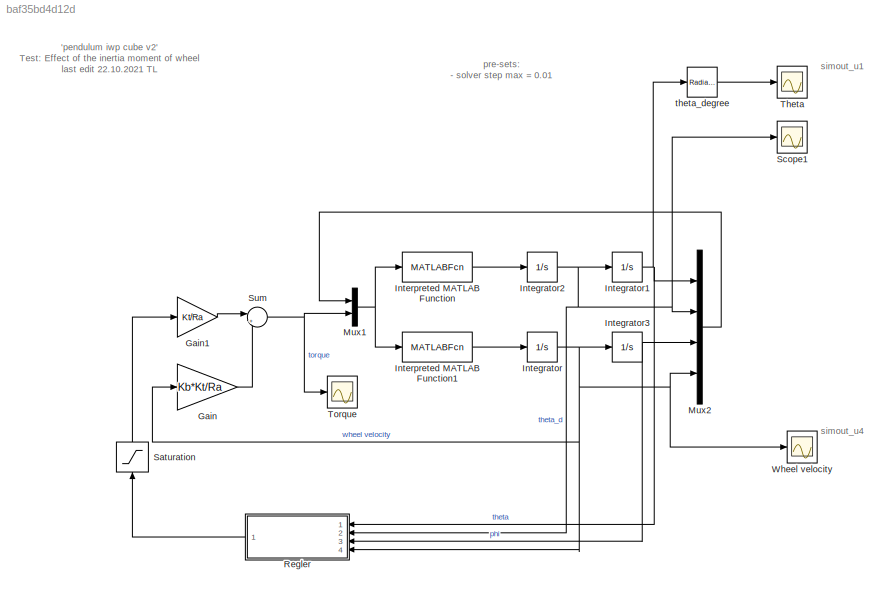
MODEL slx_baf35bd4d12d
KIND model
CONFIG AbsTol = auto
CONFIG EnableMultiTasking = on
CONFIG FixedStep = auto
CONFIG MaxStep = 0.01
CONFIG MinStep = auto
CONFIG RelTol = 1e-3
CONFIG SampleTimeConstraint = Unconstrained
CONFIG SolverName = VariableStepAuto
CONFIG StartTime = 0.0
CONFIG StopTime = 10
BLOCK [Gain] Gain
  Gain = Kb*Kt/Ra
BLOCK [Gain] Gain1
  Gain = Kt/Ra
BLOCK [Integrator] Integrator
  Ports = [1, 1]
BLOCK [Integrator] Integrator1
  InitialCondition = theta_0
  Ports = [1, 1]
BLOCK [Integrator] Integrator2
  Ports = [1, 1]
BLOCK [Integrator] Integrator3
  Ports = [1, 1]
BLOCK [MATLABFcn] Interpreted MATLAB Function
  MATLABFcn = (b*g*sin(u(1))-c1*u(2)+c2*u(4)-u(5))/(a-J2)
  NameLocation = top
  Output1D = off
  Ports = [1, 1]
BLOCK [MATLABFcn] Interpreted MATLAB Function1
  MATLABFcn = (a*u(5)/J2+c1*u(2)-b*g*sin(u(1))-a*c2*u(4)/J2)/(a-J2)
  NameLocation = top
  Output1D = off
  Ports = [1, 1]
BLOCK [Mux] Mux1
  DisplayOption = bar
  Inputs = 2
  Ports = [2, 1]
BLOCK [Mux] Mux2
  DisplayOption = bar
  Ports = [4, 1]
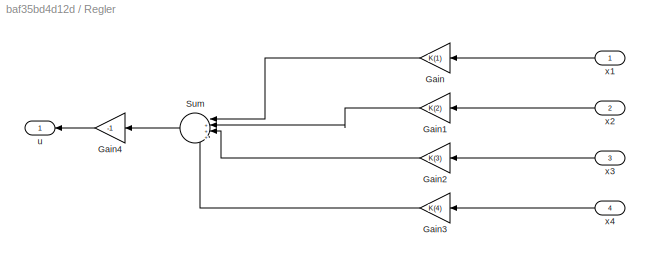
BLOCK [SubSystem] Regler
  NameLocation = top
  Ports = [4, 1]
  RequestExecContextInheritance = off
BLOCK [Gain] Regler/Gain
  Gain = K(1)
  NameLocation = top
BLOCK [Gain] Regler/Gain1
  Gain = K(2)
  NameLocation = top
BLOCK [Gain] Regler/Gain2
  Gain = K(3)
  NameLocation = top
BLOCK [Gain] Regler/Gain3
  Gain = K(4)
  NameLocation = top
BLOCK [Gain] Regler/Gain4
  Gain = -1
  NameLocation = top
BLOCK [Sum] Regler/Sum
  Inputs = |++++
  NameLocation = top
  Ports = [4, 1]
BLOCK [Outport] Regler/u
  NameLocation = top
BLOCK [Inport] Regler/x1
  NameLocation = top
BLOCK [Inport] Regler/x2
  NameLocation = top
  Port = 2
BLOCK [Inport] Regler/x3
  NameLocation = top
  Port = 3
BLOCK [Inport] Regler/x4
  NameLocation = top
  Port = 4
BLOCK [Saturate] Saturation
  LowerLimit = -30
  NameLocation = right
  UpperLimit = 30
BLOCK [Scope] Scope1
  Floating = off
  NumInputPorts = 1
  Ports = [1]
  ScopeSpecificationString = Simulink.scopes.TimeScopeBlockCfg('CurrentConfiguration', extmgr.ConfigurationSet(extmgr.Configuration('Core','General UI',true),extmgr.Configuration('Core','Source UI',true),extmgr.Configuration('Sources','WiredSimulink',true,'DataLoggingVariableName','ScopeData2'),extmgr.Configuration('Visuals','Time Domain',true,'SerializedDisplays',{struct('MinYLimReal','-0.18412','MaxYLimReal','0.16929','YLab...<+1396ch>
BLOCK [Sum] Sum
  Inputs = |+-
  Ports = [2, 1]
BLOCK [Scope] Theta
  Floating = off
  NumInputPorts = 1
  Ports = [1]
  ScopeSpecificationString = Simulink.scopes.TimeScopeBlockCfg('CurrentConfiguration', extmgr.ConfigurationSet(extmgr.Configuration('Core','General UI',true),extmgr.Configuration('Core','Source UI',true),extmgr.Configuration('Sources','WiredSimulink',true,'DataLoggingVariableName','simout_u1','DataLogging',true,'DataLoggingSaveFormat','StructureWithTime'),extmgr.Configuration('Visuals','Time Domain',true,'SerializedDisplays',...<+1500ch>
BLOCK [Scope] Torque
  Floating = off
  NumInputPorts = 1
  Ports = [1]
  ScopeSpecificationString = Simulink.scopes.TimeScopeBlockCfg('CurrentConfiguration', extmgr.ConfigurationSet(extmgr.Configuration('Core','General UI',true),extmgr.Configuration('Core','Source UI',true),extmgr.Configuration('Sources','WiredSimulink',true,'DataLoggingVariableName','ScopeData3'),extmgr.Configuration('Visuals','Time Domain',true,'SerializedDisplays',{struct('MinYLimReal','-0.18368','MaxYLimReal','1.43001','YLab...<+1417ch>
BLOCK [Scope] Wheel velocity
  Floating = off
  NumInputPorts = 1
  Ports = [1]
  ScopeSpecificationString = Simulink.scopes.TimeScopeBlockCfg('CurrentConfiguration', extmgr.ConfigurationSet(extmgr.Configuration('Core','General UI',true),extmgr.Configuration('Core','Source UI',true),extmgr.Configuration('Sources','WiredSimulink',true,'DataLoggingVariableName','simout_u4','DataLogging',true,'DataLoggingSaveFormat','StructureWithTime'),extmgr.Configuration('Visuals','Time Domain',true,'SerializedDisplays',...<+1468ch>
BLOCK [Reference] theta_degree  REF=simulink_extras/Transformations/Radians
to Degrees
  Ports = [1, 1]
  SourceBlock = simulink_extras/Transformations/Radians\nto Degrees
  SourceProductBaseCode = SL
  SourceType = RadiansToDegrees
ANNOTATION (root): 'pendulum iwp cube v2' Test: Effect of the inertia moment of wheel last edit 22.10.2021 TL
ANNOTATION (root): pre-sets: - solver step max = 0.01
ANNOTATION (root): simout_u1
ANNOTATION (root): simout_u4
LINE Gain1:1 -> Sum:1
LINE Gain:1 -> Sum:2
NET Integrator1:1 -> Mux2:1, Regler:1, theta_degree:1
NET Integrator2:1 -> Integrator1:1, Mux2:2, Regler:2, Scope1:1
NET Integrator3:1 -> Mux2:3, Regler:3
NET Integrator:1 -> Gain:1, Integrator3:1, Mux2:4, Regler:4, Wheel velocity:1
LINE Interpreted MATLAB Function1:1 -> Integrator:1
LINE Interpreted MATLAB Function:1 -> Integrator2:1
NET Mux1:1 -> Interpreted MATLAB Function1:1, Interpreted MATLAB Function:1
LINE Mux2:1 -> Mux1:1
LINE Regler/Gain1:1 -> Regler/Sum:2
LINE Regler/Gain2:1 -> Regler/Sum:3
LINE Regler/Gain3:1 -> Regler/Sum:4
LINE Regler/Gain4:1 -> Regler/u:1
LINE Regler/Gain:1 -> Regler/Sum:1
LINE Regler/Sum:1 -> Regler/Gain4:1
LINE Regler/x1:1 -> Regler/Gain:1
LINE Regler/x2:1 -> Regler/Gain1:1
LINE Regler/x3:1 -> Regler/Gain2:1
LINE Regler/x4:1 -> Regler/Gain3:1
LINE Regler:1 -> Saturation:1
LINE Saturation:1 -> Gain1:1
NET Sum:1 -> Mux1:2, Torque:1
LINE theta_degree:1 -> Theta:1
note: NET lines group one-source signal fan-out (src -> all destinations, sorted); 1:1 wires keep LINE
